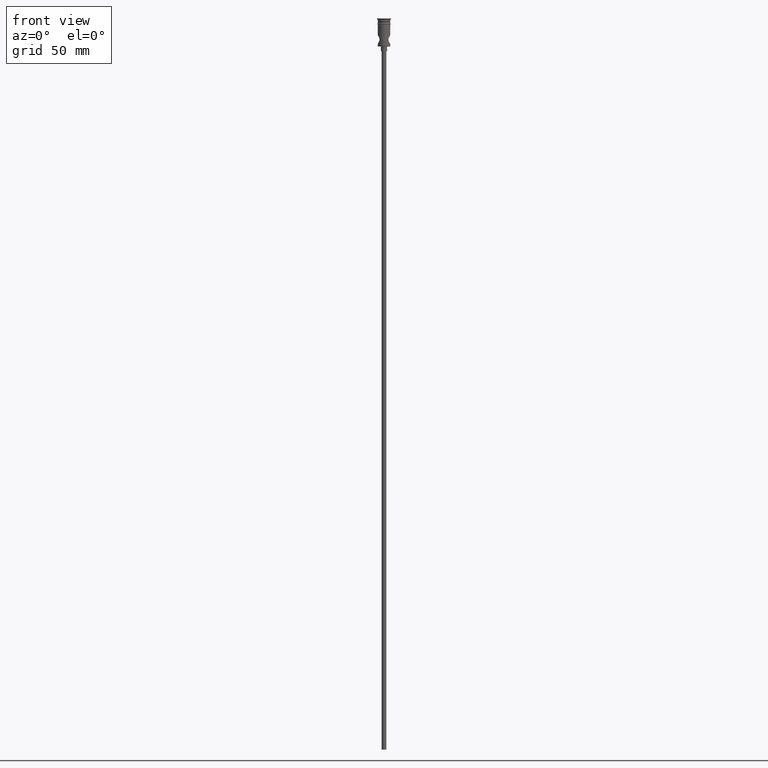
[diagram: clean part render]
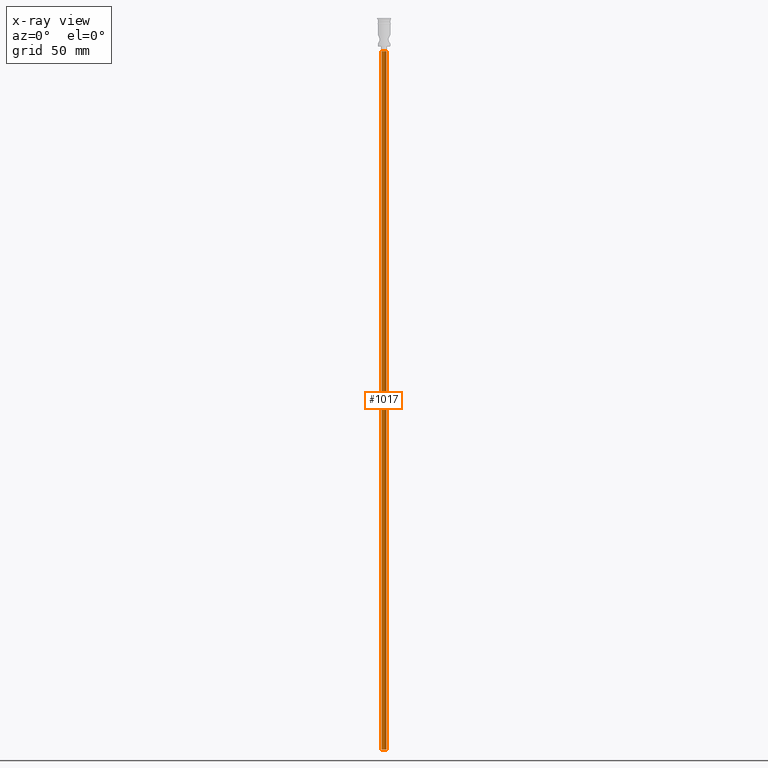
[diagram: x-ray — body ghosted, one internal face saturated and labeled with its STEP entity id]
A machine part, front view, then the same camera in x-ray: the body is ghosted and one INTERNAL B-rep face — a face not visible from any outside direction — is saturated and labeled: STEP entity #1017.
In plain terms, the highlighted cylindrical surface (edge-blend (fillet) strip) has radius 1.5 mm, axis along (-0, -0, 1).
Its self-contained STEP definition (entity closure, byte-faithful):
#5 = CARTESIAN_POINT ( 'NONE',  ( -1.500000000000000222, 1.836970198721030181E-16, -468.0000000000000000 ) ) ;
#71 = ORIENTED_EDGE ( 'NONE', *, *, #1425, .T. ) ;
#77 = VERTEX_POINT ( 'NONE', #1132 ) ;
#100 = CYLINDRICAL_SURFACE ( 'NONE', #878, 1.500000000000000222 ) ;
#126 = DIRECTION ( 'NONE',  ( -1.000000000000000000, 0.000000000000000000, 0.000000000000000000 ) ) ;
#198 = FACE_OUTER_BOUND ( 'NONE', #834, .T. ) ;
#206 = VERTEX_POINT ( 'NONE', #1291 ) ;
#238 = DIRECTION ( 'NONE',  ( 0.000000000000000000, 0.000000000000000000, -1.000000000000000000 ) ) ;
#291 = VECTOR ( 'NONE', #1333, 1000.000000000000000 ) ;
#320 = DIRECTION ( 'NONE',  ( 0.000000000000000000, 0.000000000000000000, -1.000000000000000000 ) ) ;
#333 = CARTESIAN_POINT ( 'NONE',  ( 0.000000000000000000, 0.000000000000000000, -468.0000000000000000 ) ) ;
#345 = ORIENTED_EDGE ( 'NONE', *, *, #358, .T. ) ;
#358 = EDGE_CURVE ( 'NONE', #77, #1075, #983, .T. ) ;
#363 = AXIS2_PLACEMENT_3D ( 'NONE', #552, #320, #444 ) ;
#364 = CARTESIAN_POINT ( 'NONE',  ( -1.500000000000000222, 1.836970198721030181E-16, -468.0000000000000000 ) ) ;
#377 = EDGE_CURVE ( 'NONE', #206, #1075, #1119, .T. ) ;
#444 = DIRECTION ( 'NONE',  ( -1.000000000000000000, 0.000000000000000000, 0.000000000000000000 ) ) ;
#458 = VERTEX_POINT ( 'NONE', #364 ) ;
#510 = CARTESIAN_POINT ( 'NONE',  ( 1.500000000000000222, 0.000000000000000000, -20.99999999999999645 ) ) ;
#552 = CARTESIAN_POINT ( 'NONE',  ( 0.000000000000000000, 0.000000000000000000, -20.99999999999999645 ) ) ;
#564 = CIRCLE ( 'NONE', #1268, 1.500000000000000222 ) ;
#678 = ORIENTED_EDGE ( 'NONE', *, *, #1428, .F. ) ;
#743 = DIRECTION ( 'NONE',  ( 1.000000000000000000, 0.000000000000000000, 0.000000000000000000 ) ) ;
#770 = ORIENTED_EDGE ( 'NONE', *, *, #377, .F. ) ;
#834 = EDGE_LOOP ( 'NONE', ( #678, #71, #345, #770 ) ) ;
#878 = AXIS2_PLACEMENT_3D ( 'NONE', #1190, #1084, #743 ) ;
#895 = CARTESIAN_POINT ( 'NONE',  ( 1.500000000000000222, 0.000000000000000000, -468.0000000000000000 ) ) ;
#901 = VECTOR ( 'NONE', #1007, 1000.000000000000000 ) ;
#983 = CIRCLE ( 'NONE', #363, 1.500000000000000222 ) ;
#1007 = DIRECTION ( 'NONE',  ( -0.000000000000000000, -0.000000000000000000, 1.000000000000000000 ) ) ;
#1017 = ADVANCED_FACE ( 'NONE', ( #198 ), #100, .T. ) ;
#1075 = VERTEX_POINT ( 'NONE', #510 ) ;
#1084 = DIRECTION ( 'NONE',  ( -0.000000000000000000, -0.000000000000000000, 1.000000000000000000 ) ) ;
#1119 = LINE ( 'NONE', #895, #291 ) ;
#1132 = CARTESIAN_POINT ( 'NONE',  ( -1.500000000000000222, 1.836970198721030181E-16, -20.99999999999999645 ) ) ;
#1190 = CARTESIAN_POINT ( 'NONE',  ( 0.000000000000000000, 0.000000000000000000, -468.0000000000000000 ) ) ;
#1268 = AXIS2_PLACEMENT_3D ( 'NONE', #333, #238, #126 ) ;
#1291 = CARTESIAN_POINT ( 'NONE',  ( 1.500000000000000222, 0.000000000000000000, -468.0000000000000000 ) ) ;
#1327 = LINE ( 'NONE', #5, #901 ) ;
#1333 = DIRECTION ( 'NONE',  ( -0.000000000000000000, -0.000000000000000000, 1.000000000000000000 ) ) ;
#1425 = EDGE_CURVE ( 'NONE', #458, #77, #1327, .T. ) ;
#1428 = EDGE_CURVE ( 'NONE', #458, #206, #564, .T. ) ;